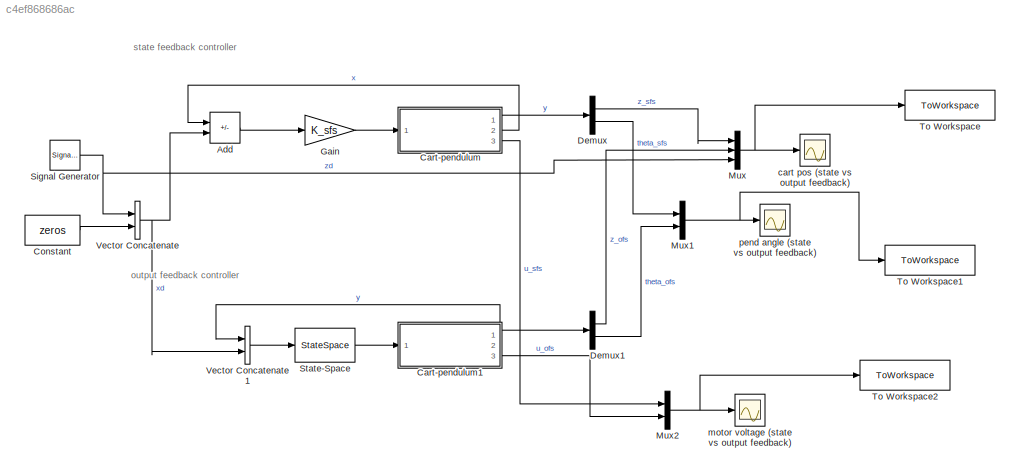
MODEL slx_c4ef868686ac
KIND model
CONFIG AbsTol = 10e-10
CONFIG EnableMultiTasking = off
CONFIG FixedStep = auto
CONFIG MaxStep = auto
CONFIG MinStep = auto
CONFIG RelTol = 10e-10
CONFIG SampleTimeConstraint = Unconstrained
CONFIG SolverName = VariableStepAuto
CONFIG StartTime = 0.0
CONFIG StopTime = 30.0
BLOCK [Sum] Add
  IconShape = rectangular
  Inputs = +-
  Ports = [2, 1]
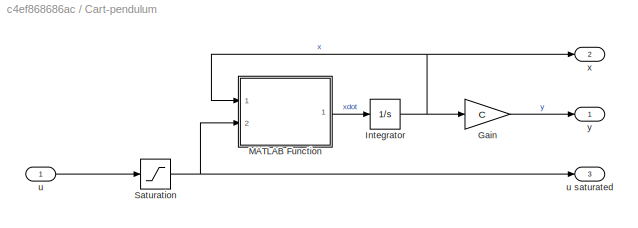
BLOCK [SubSystem] Cart-pendulum
  Ports = [1, 3]
  RequestExecContextInheritance = off
BLOCK [Gain] Cart-pendulum/Gain
  Gain = C
  Multiplication = Matrix(K*u)
BLOCK [Integrator] Cart-pendulum/Integrator
  InitialCondition = x0
  Ports = [1, 1]
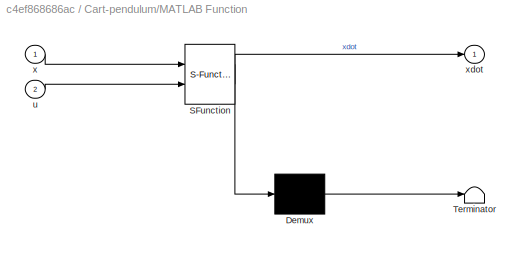
BLOCK [SubSystem] Cart-pendulum/MATLAB Function
  ErrorFcn = Stateflow.Translate.translate
  PermitHierarchicalResolution = ExplicitOnly
  Ports = [2, 1]
  RequestExecContextInheritance = off
  SFBlockType = MATLAB Function
  TreatAsAtomicUnit = on
BLOCK [Demux] Cart-pendulum/MATLAB Function/ Demux 
  Outputs = 1
  Ports = [1, 1]
BLOCK [S-Function] Cart-pendulum/MATLAB Function/ SFunction 
  EnableBusSupport = on
  FunctionName = sf_sfun
  PortCounts = [2 2]
  Ports = [2, 2]
  SFcnIsStateOwnerBlock = off
  SFunctionDeploymentMode = off
  Tag = Stateflow S-Function 2
BLOCK [Terminator] Cart-pendulum/MATLAB Function/ Terminator 
BLOCK [Inport] Cart-pendulum/MATLAB Function/u
  Port = 2
BLOCK [Inport] Cart-pendulum/MATLAB Function/x
BLOCK [Outport] Cart-pendulum/MATLAB Function/xdot
BLOCK [Saturate] Cart-pendulum/Saturation
  LowerLimit = -Ulim
  UpperLimit = Ulim
BLOCK [Inport] Cart-pendulum/u
BLOCK [Outport] Cart-pendulum/u saturated
  Port = 3
BLOCK [Outport] Cart-pendulum/x
  Port = 2
BLOCK [Outport] Cart-pendulum/y
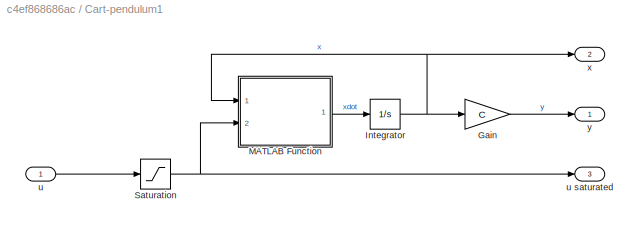
BLOCK [SubSystem] Cart-pendulum1
  Ports = [1, 3]
  RequestExecContextInheritance = off
BLOCK [Gain] Cart-pendulum1/Gain
  Gain = C
  Multiplication = Matrix(K*u)
BLOCK [Integrator] Cart-pendulum1/Integrator
  InitialCondition = x0
  Ports = [1, 1]
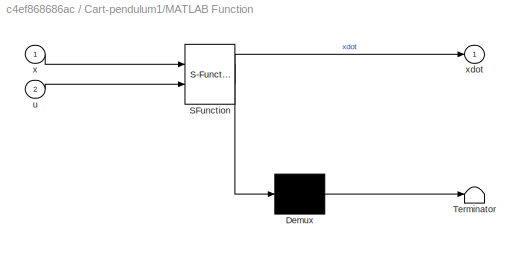
BLOCK [SubSystem] Cart-pendulum1/MATLAB Function
  ErrorFcn = Stateflow.Translate.translate
  PermitHierarchicalResolution = ExplicitOnly
  Ports = [2, 1]
  RequestExecContextInheritance = off
  SFBlockType = MATLAB Function
  TreatAsAtomicUnit = on
BLOCK [Demux] Cart-pendulum1/MATLAB Function/ Demux 
  Outputs = 1
  Ports = [1, 1]
BLOCK [S-Function] Cart-pendulum1/MATLAB Function/ SFunction 
  EnableBusSupport = on
  FunctionName = sf_sfun
  PortCounts = [2 2]
  Ports = [2, 2]
  SFcnIsStateOwnerBlock = off
  SFunctionDeploymentMode = off
  Tag = Stateflow S-Function 1
BLOCK [Terminator] Cart-pendulum1/MATLAB Function/ Terminator 
BLOCK [Inport] Cart-pendulum1/MATLAB Function/u
  Port = 2
BLOCK [Inport] Cart-pendulum1/MATLAB Function/x
BLOCK [Outport] Cart-pendulum1/MATLAB Function/xdot
BLOCK [Saturate] Cart-pendulum1/Saturation
  LowerLimit = -Ulim
  UpperLimit = Ulim
BLOCK [Inport] Cart-pendulum1/u
BLOCK [Outport] Cart-pendulum1/u saturated
  Port = 3
BLOCK [Outport] Cart-pendulum1/x
  Port = 2
BLOCK [Outport] Cart-pendulum1/y
BLOCK [Constant] Constant
  Value = zeros
BLOCK [Demux] Demux
  Outputs = 2
  Ports = [1, 2]
BLOCK [Demux] Demux1
  Outputs = 2
  Ports = [1, 2]
BLOCK [Gain] Gain
  Gain = K_sfs
  Multiplication = Matrix(K*u)
BLOCK [Mux] Mux
  DisplayOption = bar
  Inputs = 3
  Ports = [3, 1]
BLOCK [Mux] Mux1
  DisplayOption = bar
  Inputs = 2
  Ports = [2, 1]
BLOCK [Mux] Mux2
  DisplayOption = bar
  Inputs = 2
  Ports = [2, 1]
BLOCK [SignalGenerator] Signal Generator
  Amplitude = 0.1
  Frequency = 0.1
  Ports = [0, 1]
  WaveForm = square
BLOCK [StateSpace] State-Space
  A = Actrl
  B = Bctrl
  C = Cctrl
  D = Dctrl
  InitialCondition = 0
  Ports = [1, 1]
BLOCK [ToWorkspace] To Workspace
  FixptAsFi = on
  MaxDataPoints = inf
  Ports = [1]
  SampleTime = -1
  SaveFormat = Timeseries
  VariableName = z
BLOCK [ToWorkspace] To Workspace1
  FixptAsFi = on
  MaxDataPoints = inf
  Ports = [1]
  SampleTime = -1
  SaveFormat = Timeseries
  VariableName = theta
BLOCK [ToWorkspace] To Workspace2
  FixptAsFi = on
  MaxDataPoints = inf
  Ports = [1]
  SampleTime = -1
  SaveFormat = Timeseries
  VariableName = u
BLOCK [Concatenate] Vector Concatenate
  Ports = [2, 1]
BLOCK [Concatenate] Vector Concatenate1
  Ports = [2, 1]
BLOCK [Scope] cart pos (state vs output feedback)
  Floating = off
  NumInputPorts = 1
  Ports = [1]
  ScopeSpecificationString = Simulink.scopes.TimeScopeBlockCfg('CurrentConfiguration', extmgr.ConfigurationSet(extmgr.Configuration('Core','General UI',true),extmgr.Configuration('Core','Source UI',true),extmgr.Configuration('Sources','WiredSimulink',true,'DataLoggingVariableName','ScopeData2'),extmgr.Configuration('Visuals','Time Domain',true,'SerializedDisplays',{struct('MinYLimReal','-0.17073','MaxYLimReal','0.17073','YLab...<+1792ch>
BLOCK [Scope] motor voltage (state vs output feedback)
  Floating = off
  NumInputPorts = 1
  Ports = [1]
  ScopeSpecificationString = Simulink.scopes.TimeScopeBlockCfg('CurrentConfiguration', extmgr.ConfigurationSet(extmgr.Configuration('Core','General UI',true),extmgr.Configuration('Core','Source UI',true),extmgr.Configuration('Sources','WiredSimulink',true),extmgr.Configuration('Visuals','Time Domain',true,'SerializedDisplays',{struct('MinYLimReal','-6.95816','MaxYLimReal','3.87348','YLabelReal','','MinYLimMag','0.00000','MaxY...<+1405ch>
BLOCK [Scope] pend angle (state vs output feedback)
  Floating = off
  NumInputPorts = 1
  Ports = [1]
  ScopeSpecificationString = Simulink.scopes.TimeScopeBlockCfg('CurrentConfiguration', extmgr.ConfigurationSet(extmgr.Configuration('Core','General UI',true),extmgr.Configuration('Core','Source UI',true),extmgr.Configuration('Sources','WiredSimulink',true,'DataLoggingVariableName','ScopeData1'),extmgr.Configuration('Visuals','Time Domain',true,'SerializedDisplays',{struct('MinYLimReal','-0.09141','MaxYLimReal','0.15561','YLab...<+1407ch>
ANNOTATION (root): output feedback controller
ANNOTATION (root): state feedback controller
LINE Add:1 -> Gain:1
LINE Cart-pendulum/Gain:1 -> Cart-pendulum/y:1
NET Cart-pendulum/Integrator:1 -> Cart-pendulum/Gain:1, Cart-pendulum/MATLAB Function:1, Cart-pendulum/x:1
LINE Cart-pendulum/MATLAB Function:1 -> Cart-pendulum/Integrator:1
NET Cart-pendulum/Saturation:1 -> Cart-pendulum/MATLAB Function:2, Cart-pendulum/u saturated:1
LINE Cart-pendulum/u:1 -> Cart-pendulum/Saturation:1
LINE Cart-pendulum1/Gain:1 -> Cart-pendulum1/y:1
NET Cart-pendulum1/Integrator:1 -> Cart-pendulum1/Gain:1, Cart-pendulum1/MATLAB Function:1, Cart-pendulum1/x:1
LINE Cart-pendulum1/MATLAB Function:1 -> Cart-pendulum1/Integrator:1
NET Cart-pendulum1/Saturation:1 -> Cart-pendulum1/MATLAB Function:2, Cart-pendulum1/u saturated:1
LINE Cart-pendulum1/u:1 -> Cart-pendulum1/Saturation:1
NET Cart-pendulum1:1 -> Demux1:1, Vector Concatenate1:1
LINE Cart-pendulum1:3 -> Mux2:2
LINE Cart-pendulum:1 -> Demux:1
LINE Cart-pendulum:2 -> Add:1
LINE Cart-pendulum:3 -> Mux2:1
LINE Constant:1 -> Vector Concatenate:2
LINE Demux1:1 -> Mux:2
LINE Demux1:2 -> Mux1:2
LINE Demux:1 -> Mux:1
LINE Demux:2 -> Mux1:1
LINE Gain:1 -> Cart-pendulum:1
NET Mux1:1 -> To Workspace1:1, pend angle (state vs output feedback):1
NET Mux2:1 -> To Workspace2:1, motor voltage (state vs output feedback):1
NET Mux:1 -> To Workspace:1, cart pos (state vs output feedback):1
NET Signal Generator:1 -> Mux:3, Vector Concatenate:1
LINE State-Space:1 -> Cart-pendulum1:1
LINE Vector Concatenate1:1 -> State-Space:1
NET Vector Concatenate:1 -> Add:2, Vector Concatenate1:2
note: NET lines group one-source signal fan-out (src -> all destinations, sorted); 1:1 wires keep LINE
CHART Cart-pendulum/MATLAB Function states=1 transitions=1
  STATE_LABEL 'eML_blk_kernel()'
  STATE_LABEL 'SCRIPT:\nfunction xdot = cartpend(x,u)\n\nxdot = cartpend(x,u);\n'
CHART Cart-pendulum1/MATLAB Function states=1 transitions=1
  STATE_LABEL 'eML_blk_kernel()'
  STATE_LABEL 'SCRIPT:\nfunction xdot = cartpend(x,u)\n\nxdot = cartpend(x,u);\n'
CHART  states=0 transitions=0
CHART  states=0 transitions=0
